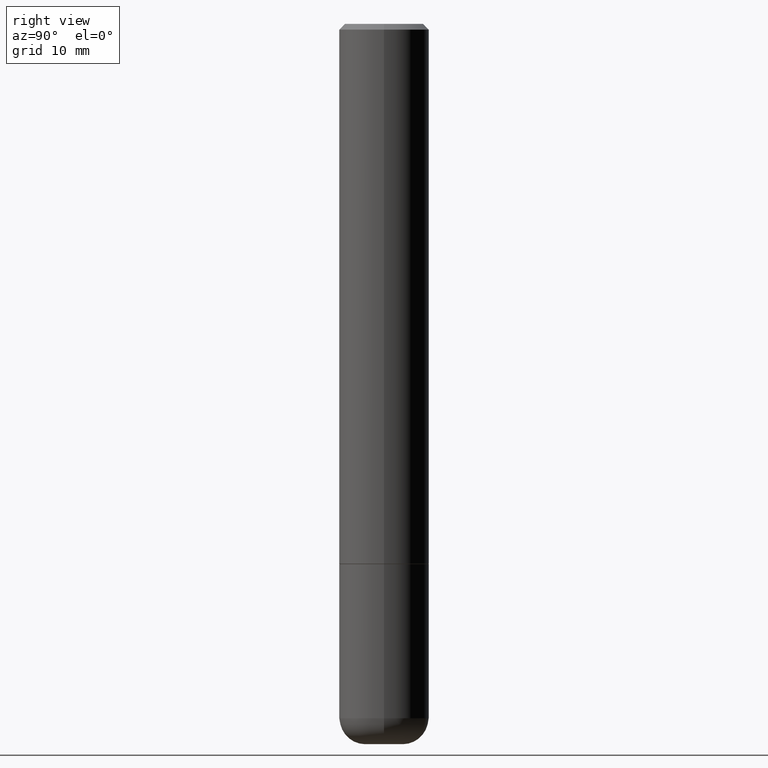
[diagram: clean part render]
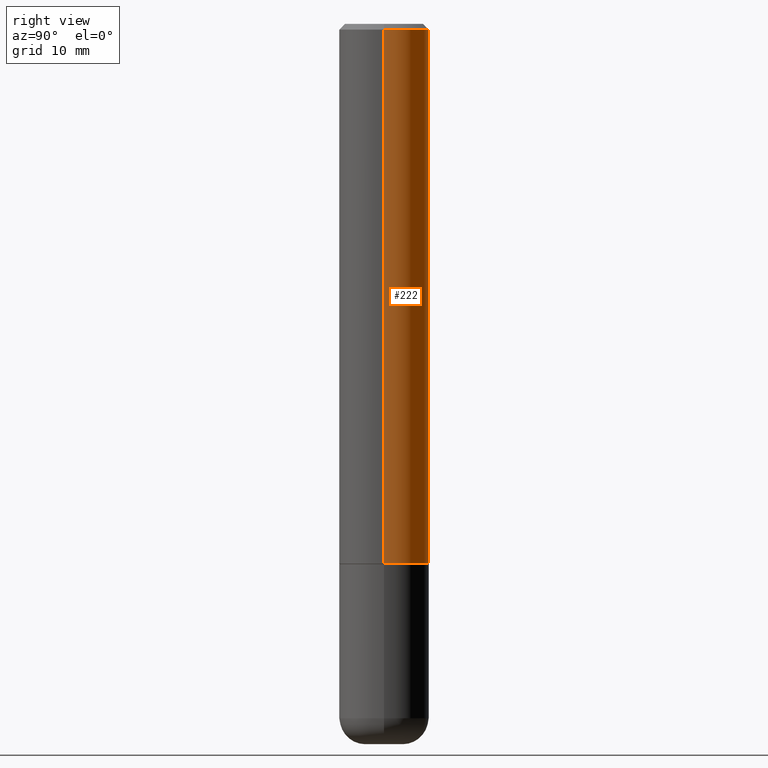
[diagram: same view with one face highlighted and labeled with its STEP entity id]
A machine part, right view. The second image highlights one B-rep face of the part: STEP entity #222.
In plain terms, the highlighted cylindrical surface (partial cylindrical patch) has radius 3.9688 mm, axis along (-0, 0, 1).
Its self-contained STEP definition (entity closure, byte-faithful):
#6 = CARTESIAN_POINT ( 'NONE',  ( -0.1562500000000000278, 1.021258291611616467E-15, -0.02000000000000003511 ) ) ;
#12 = FACE_OUTER_BOUND ( 'NONE', #112, .T. ) ;
#17 = CARTESIAN_POINT ( 'NONE',  ( 4.582808542790945516E-29, -6.543036028992054911E-15, -1.874000000000000110 ) ) ;
#21 = ORIENTED_EDGE ( 'NONE', *, *, #394, .F. ) ;
#28 = CIRCLE ( 'NONE', #58, 0.1562500000000000278 ) ;
#32 = EDGE_CURVE ( 'NONE', #43, #165, #28, .T. ) ;
#43 = VERTEX_POINT ( 'NONE', #355 ) ;
#44 = CIRCLE ( 'NONE', #132, 0.1562500000000002220 ) ;
#49 = DIRECTION ( 'NONE',  ( 1.000000000000000000, -6.982962677686265922E-15, 0.000000000000000000 ) ) ;
#58 = AXIS2_PLACEMENT_3D ( 'NONE', #368, #83, #171 ) ;
#83 = DIRECTION ( 'NONE',  ( -2.445468806185136597E-29, 3.491481338843145583E-15, 1.000000000000000000 ) ) ;
#99 = LINE ( 'NONE', #221, #154 ) ;
#112 = EDGE_LOOP ( 'NONE', ( #119, #169, #153, #21 ) ) ;
#119 = ORIENTED_EDGE ( 'NONE', *, *, #167, .T. ) ;
#121 = CARTESIAN_POINT ( 'NONE',  ( 0.000000000000000000, 0.000000000000000000, 0.000000000000000000 ) ) ;
#125 = CARTESIAN_POINT ( 'NONE',  ( 0.1562500000000002220, -7.634123947380535662E-15, -1.874000000000000110 ) ) ;
#132 = AXIS2_PLACEMENT_3D ( 'NONE', #17, #158, #49 ) ;
#133 = VERTEX_POINT ( 'NONE', #125 ) ;
#153 = ORIENTED_EDGE ( 'NONE', *, *, #32, .F. ) ;
#154 = VECTOR ( 'NONE', #257, 39.37007874015748143 ) ;
#158 = DIRECTION ( 'NONE',  ( -2.445468806185136597E-29, 3.491481338843145583E-15, 1.000000000000000000 ) ) ;
#165 = VERTEX_POINT ( 'NONE', #6 ) ;
#167 = EDGE_CURVE ( 'NONE', #133, #206, #44, .T. ) ;
#169 = ORIENTED_EDGE ( 'NONE', *, *, #372, .T. ) ;
#171 = DIRECTION ( 'NONE',  ( 1.000000000000000000, -6.982962677686266711E-15, 0.000000000000000000 ) ) ;
#189 = LINE ( 'NONE', #321, #325 ) ;
#206 = VERTEX_POINT ( 'NONE', #254 ) ;
#221 = CARTESIAN_POINT ( 'NONE',  ( 0.1562500000000001388, -1.091087918388480160E-15, 7.619026212181157383E-30 ) ) ;
#222 = ADVANCED_FACE ( 'NONE', ( #12 ), #248, .T. ) ;
#234 = DIRECTION ( 'NONE',  ( -2.445468806185136877E-29, 3.491481338843145188E-15, 1.000000000000000000 ) ) ;
#248 = CYLINDRICAL_SURFACE ( 'NONE', #292, 0.1562500000000001388 ) ;
#254 = CARTESIAN_POINT ( 'NONE',  ( -0.1562500000000002220, -2.196209803259299803E-15, -1.874000000000000110 ) ) ;
#257 = DIRECTION ( 'NONE',  ( -2.445468806185136877E-29, 3.491481338843145188E-15, 1.000000000000000000 ) ) ;
#292 = AXIS2_PLACEMENT_3D ( 'NONE', #121, #340, #381 ) ;
#321 = CARTESIAN_POINT ( 'NONE',  ( -0.1562500000000001388, 1.110223024625157526E-15, -7.685836078523296765E-30 ) ) ;
#325 = VECTOR ( 'NONE', #234, 39.37007874015748143 ) ;
#340 = DIRECTION ( 'NONE',  ( -2.445468806185136597E-29, 3.491481338843145583E-15, 1.000000000000000000 ) ) ;
#355 = CARTESIAN_POINT ( 'NONE',  ( 0.1562500000000000278, -1.141782438928665105E-15, -0.02000000000000003511 ) ) ;
#368 = CARTESIAN_POINT ( 'NONE',  ( 4.890937612370281041E-31, -6.982962677686302702E-17, -0.02000000000000003511 ) ) ;
#372 = EDGE_CURVE ( 'NONE', #206, #165, #189, .T. ) ;
#381 = DIRECTION ( 'NONE',  ( 1.000000000000000000, -6.982962677686266711E-15, 4.876176775795936353E-29 ) ) ;
#394 = EDGE_CURVE ( 'NONE', #133, #43, #99, .T. ) ;